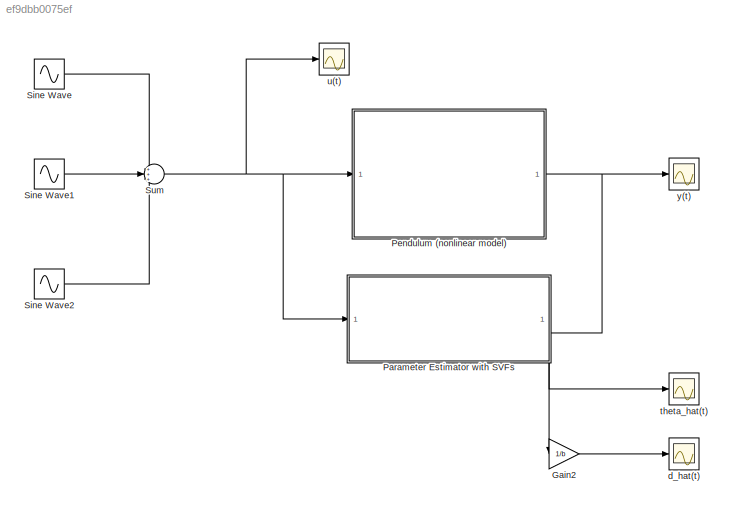
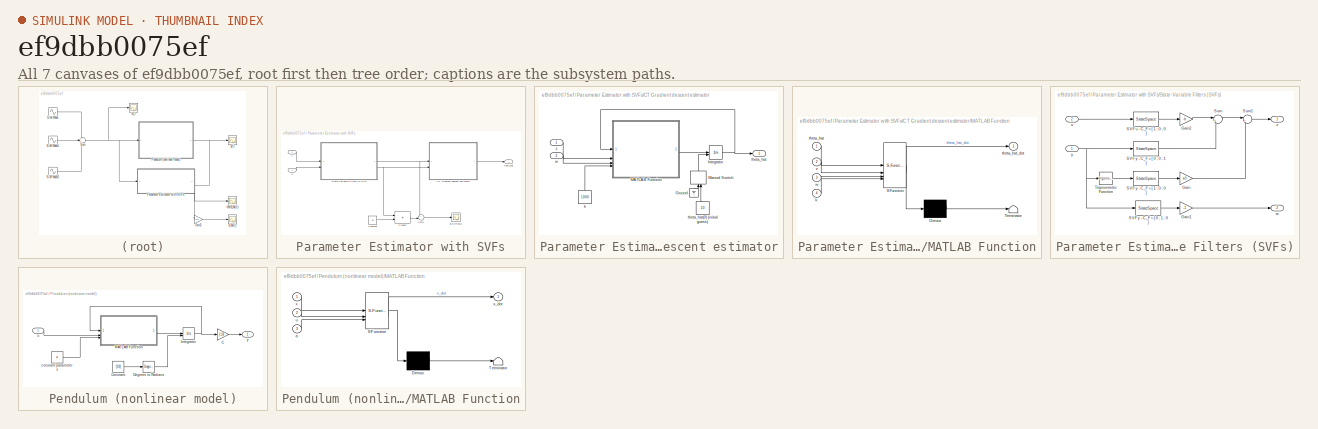
[diagram: thumbnail index - all 7 canvases of the model, root first then tree order]
MODEL slx_ef9dbb0075ef
KIND model
CONFIG AbsTol = auto
CONFIG EnableMultiTasking = off
CONFIG FixedStep = 0.01
CONFIG MaxStep = auto
CONFIG MinStep = auto
CONFIG RelTol = 1e-3
CONFIG SampleTimeConstraint = Unconstrained
CONFIG SolverName = ode3
CONFIG StartTime = 0.0
CONFIG StopTime = 500
BLOCK [Gain] Gain2
  Gain = 1/b
BLOCK [SubSystem] Parameter Estimator with SVFs
  NameLocation = top
  PortSchema = {"entries":[{"content":{"sides":[{"content":{"connectorIds":["In1"]},"type":"ConnectorPlacement.EquallySpacedRectSide","uuid":"701dba22-d81c-4620-a4f9-4eedebec699b"},{"content":{"connectorIds":["In2"],"side":"RIGHT"},"type":"ConnectorPlacement.EquallySpacedRectSide","uuid":"14a753f7-073c-4e1b-870d-b975b59fa292"},{"content":{"connectorIds":[],"side":"TOP"},"type":"ConnectorPlacement.EquallySpacedRe...<+389ch>
BLOCK [SubSystem] Parameter Estimator with SVFs/CT Gradient descent estimator
BLOCK [Ground] Parameter Estimator with SVFs/CT Gradient descent estimator/Ground
  NameLocation = right
BLOCK [Integrator] Parameter Estimator with SVFs/CT Gradient descent estimator/Integrator
  InitialCondition = 10
  InitialConditionSource = external
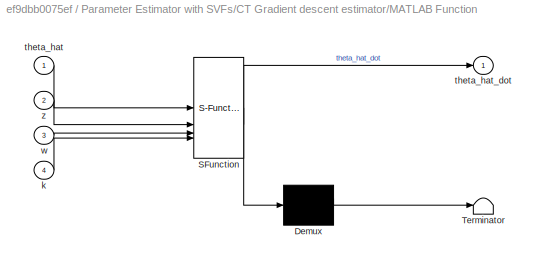
BLOCK [SubSystem] Parameter Estimator with SVFs/CT Gradient descent estimator/MATLAB Function
  ErrorFcn = Stateflow.Translate.translate
  PermitHierarchicalResolution = ExplicitOnly
  SFBlockType = MATLAB Function
  TreatAsAtomicUnit = on
BLOCK [Demux] Parameter Estimator with SVFs/CT Gradient descent estimator/MATLAB Function/ Demux 
  Outputs = 1
BLOCK [S-Function] Parameter Estimator with SVFs/CT Gradient descent estimator/MATLAB Function/ SFunction 
  EnableBusSupport = on
  FunctionName = sf_sfun
  PortCounts = [4 2]
  SFcnIsStateOwnerBlock = off
  SFunctionDeploymentMode = off
  Tag = Stateflow S-Function 1
BLOCK [Terminator] Parameter Estimator with SVFs/CT Gradient descent estimator/MATLAB Function/ Terminator 
BLOCK [Inport] Parameter Estimator with SVFs/CT Gradient descent estimator/MATLAB Function/k
  Port = 4
BLOCK [Inport] Parameter Estimator with SVFs/CT Gradient descent estimator/MATLAB Function/theta_hat
BLOCK [Outport] Parameter Estimator with SVFs/CT Gradient descent estimator/MATLAB Function/theta_hat_dot
BLOCK [Inport] Parameter Estimator with SVFs/CT Gradient descent estimator/MATLAB Function/w
  Port = 3
BLOCK [Inport] Parameter Estimator with SVFs/CT Gradient descent estimator/MATLAB Function/z
  Port = 2
BLOCK [ManualSwitch] Parameter Estimator with SVFs/CT Gradient descent estimator/Manual Switch
  NameLocation = right
BLOCK [Constant] Parameter Estimator with SVFs/CT Gradient descent estimator/k
  NameLocation = right
  Value = 1000
BLOCK [Outport] Parameter Estimator with SVFs/CT Gradient descent estimator/theta_hat
BLOCK [Constant] Parameter Estimator with SVFs/CT Gradient descent estimator/theta_hat(0) (initial guess)
  NameLocation = right
  Value = 10
BLOCK [Inport] Parameter Estimator with SVFs/CT Gradient descent estimator/w
  Port = 2
BLOCK [Inport] Parameter Estimator with SVFs/CT Gradient descent estimator/z
BLOCK [Constant] Parameter Estimator with SVFs/Constant
  Value = a1
  VectorParams1D = off
BLOCK [Product] Parameter Estimator with SVFs/Product
  Multiplication = Matrix(*)
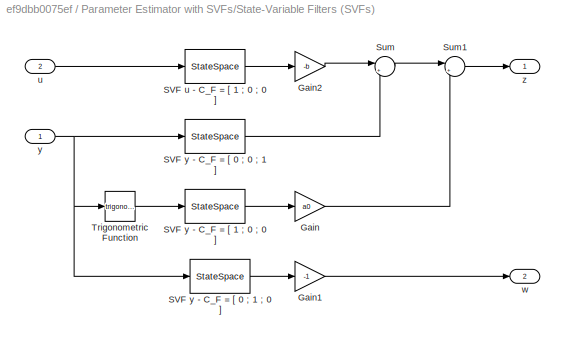
BLOCK [SubSystem] Parameter Estimator with SVFs/State-Variable Filters (SVFs)
BLOCK [Gain] Parameter Estimator with SVFs/State-Variable Filters (SVFs)/Gain
  Gain = a0
BLOCK [Gain] Parameter Estimator with SVFs/State-Variable Filters (SVFs)/Gain1
  Gain = -1
BLOCK [Gain] Parameter Estimator with SVFs/State-Variable Filters (SVFs)/Gain2
  Gain = -b
BLOCK [StateSpace] Parameter Estimator with SVFs/State-Variable Filters (SVFs)/SVF u - C_F = [ 1 ; 0 ; 0 ]
  A = A_F
  B = B_F
  C = C_F0
  D = 0
  InitialCondition = zeros(3,1)
BLOCK [StateSpace] Parameter Estimator with SVFs/State-Variable Filters (SVFs)/SVF y - C_F = [ 0 ; 0 ; 1 ]
  A = A_F
  B = B_F
  C = C_F2
  D = 0
  InitialCondition = ones(3,1)
BLOCK [StateSpace] Parameter Estimator with SVFs/State-Variable Filters (SVFs)/SVF y - C_F = [ 0 ; 1 ; 0 ]
  A = A_F
  B = B_F
  C = C_F1
  D = 0
  InitialCondition = zeros(3,1)
BLOCK [StateSpace] Parameter Estimator with SVFs/State-Variable Filters (SVFs)/SVF y - C_F = [ 1 ; 0 ; 0 ]
  A = A_F
  B = B_F
  C = C_F0
  D = 0
  InitialCondition = zeros(3,1)
BLOCK [Sum] Parameter Estimator with SVFs/State-Variable Filters (SVFs)/Sum
  Inputs = |++
BLOCK [Sum] Parameter Estimator with SVFs/State-Variable Filters (SVFs)/Sum1
  Inputs = |++
BLOCK [Trigonometry] Parameter Estimator with SVFs/State-Variable Filters (SVFs)/Trigonometric Function
BLOCK [Inport] Parameter Estimator with SVFs/State-Variable Filters (SVFs)/u
  Port = 2
BLOCK [Outport] Parameter Estimator with SVFs/State-Variable Filters (SVFs)/w
  Port = 2
BLOCK [Inport] Parameter Estimator with SVFs/State-Variable Filters (SVFs)/y
BLOCK [Outport] Parameter Estimator with SVFs/State-Variable Filters (SVFs)/z
BLOCK [Sum] Parameter Estimator with SVFs/Sum1
  Inputs = +-|
BLOCK [Scope] Parameter Estimator with SVFs/e=z-w'*theta
  Floating = off
  NumInputPorts = 1
  ScopeSpecificationString = Simulink.scopes.TimeScopeBlockCfg('CurrentConfiguration', extmgr.ConfigurationSet(extmgr.Configuration('Core','General UI',true),extmgr.Configuration('Core','Source UI',true),extmgr.Configuration('Sources','WiredSimulink',true,'DataLoggingVariableName','ScopeData1'),extmgr.Configuration('Visuals','Time Domain',true,'SerializedDisplays',{struct('MinYLimReal','0.9','MaxYLimReal','1.1','YLabelReal','...<+1358ch>
BLOCK [Outport] Parameter Estimator with SVFs/theta_hat
BLOCK [Inport] Parameter Estimator with SVFs/u
BLOCK [Inport] Parameter Estimator with SVFs/y
  Port = 2
BLOCK [SubSystem] Pendulum (nonlinear model)
  NameLocation = top
BLOCK [Gain] Pendulum (nonlinear model)/C
  Gain = [1,0]
  Multiplication = Matrix(K*u) (u vector)
BLOCK [Constant] Pendulum (nonlinear model)/Constant
  Value = [0;0]
  VectorParams1D = off
BLOCK [Reference] Pendulum (nonlinear model)/Degrees to Radians  REF=simulink_extras/Transformations/Degrees to
Radians
  SourceBlock = simulink_extras/Transformations/Degrees to\nRadians
  SourceType = DegreesToRadians
BLOCK [Integrator] Pendulum (nonlinear model)/Integrator
  InitialCondition = xstar
  InitialConditionSource = external
BLOCK [SubSystem] Pendulum (nonlinear model)/MATLAB Function
  ErrorFcn = Stateflow.Translate.translate
  PermitHierarchicalResolution = ExplicitOnly
  SFBlockType = MATLAB Function
  TreatAsAtomicUnit = on
BLOCK [Demux] Pendulum (nonlinear model)/MATLAB Function/ Demux 
  Outputs = 1
BLOCK [S-Function] Pendulum (nonlinear model)/MATLAB Function/ SFunction 
  EnableBusSupport = on
  FunctionName = sf_sfun
  PortCounts = [3 2]
  SFcnIsStateOwnerBlock = off
  SFunctionDeploymentMode = off
  Tag = Stateflow S-Function 2
BLOCK [Terminator] Pendulum (nonlinear model)/MATLAB Function/ Terminator 
BLOCK [Inport] Pendulum (nonlinear model)/MATLAB Function/a
  Port = 3
BLOCK [Inport] Pendulum (nonlinear model)/MATLAB Function/u
  Port = 2
BLOCK [Inport] Pendulum (nonlinear model)/MATLAB Function/x
BLOCK [Outport] Pendulum (nonlinear model)/MATLAB Function/x_dot
BLOCK [Constant] Pendulum (nonlinear model)/constant parameters
  Value = a
  VectorParams1D = off
BLOCK [Inport] Pendulum (nonlinear model)/u
BLOCK [Outport] Pendulum (nonlinear model)/y
BLOCK [Sin] Sine Wave
  Phase = pi*rand
  SampleTime = 0
BLOCK [Sin] Sine Wave1
  Frequency = 2
  Phase = pi/5
  SampleTime = 0
BLOCK [Sin] Sine Wave2
  Frequency = 0.5
  Phase = pi/3
  SampleTime = 0
BLOCK [Sum] Sum
  Inputs = +++
BLOCK [Scope] d_hat(t)
  Floating = off
  NumInputPorts = 1
  ScopeSpecificationString = Simulink.scopes.TimeScopeBlockCfg('CurrentConfiguration', extmgr.ConfigurationSet(extmgr.Configuration('Core','General UI',true),extmgr.Configuration('Core','Source UI',true),extmgr.Configuration('Sources','WiredSimulink',true,'DataLoggingVariableName','ScopeData1'),extmgr.Configuration('Visuals','Time Domain',true,'SerializedDisplays',{struct('MinYLimReal','-1702.20978','MaxYLimReal','234.36656',...<+1457ch>
BLOCK [Scope] theta_hat(t)
  Floating = off
  NumInputPorts = 1
  ScopeSpecificationString = Simulink.scopes.TimeScopeBlockCfg('CurrentConfiguration', extmgr.ConfigurationSet(extmgr.Configuration('Core','General UI',true),extmgr.Configuration('Core','Source UI',true),extmgr.Configuration('Sources','WiredSimulink',true,'DataLoggingVariableName','ScopeData1'),extmgr.Configuration('Visuals','Time Domain',true,'SerializedDisplays',{struct('MinYLimReal','-4.24401','MaxYLimReal','0.58985','YLab...<+1489ch>
BLOCK [Scope] u(t)
  Floating = off
  NumInputPorts = 1
  ScopeSpecificationString = Simulink.scopes.TimeScopeBlockCfg('CurrentConfiguration', extmgr.ConfigurationSet(extmgr.Configuration('Core','General UI',true),extmgr.Configuration('Core','Source UI',true),extmgr.Configuration('Sources','WiredSimulink',true,'DataLoggingVariableName','ScopeData1'),extmgr.Configuration('Visuals','Time Domain',true,'SerializedDisplays',{struct('MinYLimReal','-2.74767','MaxYLimReal','3.39984','YLab...<+1390ch>
BLOCK [Scope] y(t)
  Floating = off
  NumInputPorts = 1
  ScopeSpecificationString = Simulink.scopes.TimeScopeBlockCfg('CurrentConfiguration', extmgr.ConfigurationSet(extmgr.Configuration('Core','General UI',true),extmgr.Configuration('Core','Source UI',true),extmgr.Configuration('Sources','WiredSimulink',true),extmgr.Configuration('Visuals','Time Domain',true,'SerializedDisplays',{struct('MinYLimReal','-1.00000','MaxYLimReal','1.00000','YLabelReal','','MinYLimMag','0.00000','MaxY...<+1401ch>
LINE Gain2:1 -> d_hat(t):1
LINE Parameter Estimator with SVFs/CT Gradient descent estimator/Ground:1 -> Parameter Estimator with SVFs/CT Gradient descent estimator/Manual Switch:1
NET Parameter Estimator with SVFs/CT Gradient descent estimator/Integrator:1 -> Parameter Estimator with SVFs/CT Gradient descent estimator/MATLAB Function:1, Parameter Estimator with SVFs/CT Gradient descent estimator/theta_hat:1
LINE Parameter Estimator with SVFs/CT Gradient descent estimator/MATLAB Function:1 -> Parameter Estimator with SVFs/CT Gradient descent estimator/Integrator:1
LINE Parameter Estimator with SVFs/CT Gradient descent estimator/Manual Switch:1 -> Parameter Estimator with SVFs/CT Gradient descent estimator/Integrator:2
LINE Parameter Estimator with SVFs/CT Gradient descent estimator/k:1 -> Parameter Estimator with SVFs/CT Gradient descent estimator/MATLAB Function:4
LINE Parameter Estimator with SVFs/CT Gradient descent estimator/theta_hat(0) (initial guess):1 -> Parameter Estimator with SVFs/CT Gradient descent estimator/Manual Switch:2
LINE Parameter Estimator with SVFs/CT Gradient descent estimator/w:1 -> Parameter Estimator with SVFs/CT Gradient descent estimator/MATLAB Function:3
LINE Parameter Estimator with SVFs/CT Gradient descent estimator/z:1 -> Parameter Estimator with SVFs/CT Gradient descent estimator/MATLAB Function:2
LINE Parameter Estimator with SVFs/CT Gradient descent estimator:1 -> Parameter Estimator with SVFs/theta_hat:1
LINE Parameter Estimator with SVFs/Constant:1 -> Parameter Estimator with SVFs/Product:2
LINE Parameter Estimator with SVFs/Product:1 -> Parameter Estimator with SVFs/Sum1:2
LINE Parameter Estimator with SVFs/State-Variable Filters (SVFs)/Gain1:1 -> Parameter Estimator with SVFs/State-Variable Filters (SVFs)/w:1
LINE Parameter Estimator with SVFs/State-Variable Filters (SVFs)/Gain2:1 -> Parameter Estimator with SVFs/State-Variable Filters (SVFs)/Sum:1
LINE Parameter Estimator with SVFs/State-Variable Filters (SVFs)/Gain:1 -> Parameter Estimator with SVFs/State-Variable Filters (SVFs)/Sum1:2
LINE Parameter Estimator with SVFs/State-Variable Filters (SVFs)/SVF u - C_F = [ 1 ; 0 ; 0 ]:1 -> Parameter Estimator with SVFs/State-Variable Filters (SVFs)/Gain2:1
LINE Parameter Estimator with SVFs/State-Variable Filters (SVFs)/SVF y - C_F = [ 0 ; 0 ; 1 ]:1 -> Parameter Estimator with SVFs/State-Variable Filters (SVFs)/Sum:2
LINE Parameter Estimator with SVFs/State-Variable Filters (SVFs)/SVF y - C_F = [ 0 ; 1 ; 0 ]:1 -> Parameter Estimator with SVFs/State-Variable Filters (SVFs)/Gain1:1
LINE Parameter Estimator with SVFs/State-Variable Filters (SVFs)/SVF y - C_F = [ 1 ; 0 ; 0 ]:1 -> Parameter Estimator with SVFs/State-Variable Filters (SVFs)/Gain:1
LINE Parameter Estimator with SVFs/State-Variable Filters (SVFs)/Sum1:1 -> Parameter Estimator with SVFs/State-Variable Filters (SVFs)/z:1
LINE Parameter Estimator with SVFs/State-Variable Filters (SVFs)/Sum:1 -> Parameter Estimator with SVFs/State-Variable Filters (SVFs)/Sum1:1
LINE Parameter Estimator with SVFs/State-Variable Filters (SVFs)/Trigonometric Function:1 -> Parameter Estimator with SVFs/State-Variable Filters (SVFs)/SVF y - C_F = [ 1 ; 0 ; 0 ]:1
LINE Parameter Estimator with SVFs/State-Variable Filters (SVFs)/u:1 -> Parameter Estimator with SVFs/State-Variable Filters (SVFs)/SVF u - C_F = [ 1 ; 0 ; 0 ]:1
NET Parameter Estimator with SVFs/State-Variable Filters (SVFs)/y:1 -> Parameter Estimator with SVFs/State-Variable Filters (SVFs)/SVF y - C_F = [ 0 ; 0 ; 1 ]:1, Parameter Estimator with SVFs/State-Variable Filters (SVFs)/SVF y - C_F = [ 0 ; 1 ; 0 ]:1, Parameter Estimator with SVFs/State-Variable Filters (SVFs)/Trigonometric Function:1
NET Parameter Estimator with SVFs/State-Variable Filters (SVFs):1 -> Parameter Estimator with SVFs/CT Gradient descent estimator:1, Parameter Estimator with SVFs/Sum1:1
NET Parameter Estimator with SVFs/State-Variable Filters (SVFs):2 -> Parameter Estimator with SVFs/CT Gradient descent estimator:2, Parameter Estimator with SVFs/Product:1
LINE Parameter Estimator with SVFs/Sum1:1 -> Parameter Estimator with SVFs/e=z-w'*theta:1
LINE Parameter Estimator with SVFs/u:1 -> Parameter Estimator with SVFs/State-Variable Filters (SVFs):2
LINE Parameter Estimator with SVFs/y:1 -> Parameter Estimator with SVFs/State-Variable Filters (SVFs):1
NET Parameter Estimator with SVFs:1 -> Gain2:1, theta_hat(t):1
LINE Pendulum (nonlinear model)/C:1 -> Pendulum (nonlinear model)/y:1
LINE Pendulum (nonlinear model)/Constant:1 -> Pendulum (nonlinear model)/Degrees to Radians:1
LINE Pendulum (nonlinear model)/Degrees to Radians:1 -> Pendulum (nonlinear model)/Integrator:2
NET Pendulum (nonlinear model)/Integrator:1 -> Pendulum (nonlinear model)/C:1, Pendulum (nonlinear model)/MATLAB Function:1
LINE Pendulum (nonlinear model)/MATLAB Function:1 -> Pendulum (nonlinear model)/Integrator:1
LINE Pendulum (nonlinear model)/constant parameters:1 -> Pendulum (nonlinear model)/MATLAB Function:3
LINE Pendulum (nonlinear model)/u:1 -> Pendulum (nonlinear model)/MATLAB Function:2
NET Pendulum (nonlinear model):1 -> Parameter Estimator with SVFs:2, y(t):1
LINE Sine Wave1:1 -> Sum:2
LINE Sine Wave2:1 -> Sum:3
LINE Sine Wave:1 -> Sum:1
NET Sum:1 -> Parameter Estimator with SVFs:1, Pendulum (nonlinear model):1, u(t):1
note: NET lines group one-source signal fan-out (src -> all destinations, sorted); 1:1 wires keep LINE
CHART Parameter Estimator with SVFs/CT Gradient descent estimator/MATLAB Function states=1 transitions=1
  STATE_LABEL 'eML_blk_kernel()'
  STATE_LABEL 'SCRIPT:\nfunction theta_hat_dot = fcn(theta_hat,z,w,k)\n\n% compute Jacobian of cost function J with respect to theta_hat\ndJdtheta_hat = 2*w*(w*theta_hat - z);\n\n% basic gradient descent algorithm\ntheta_hat_dot = -k*dJdtheta_hat;\n'
CHART Pendulum (nonlinear model)/MATLAB Function states=1 transitions=1
  STATE_LABEL 'eML_blk_kernel()'
  STATE_LABEL 'SCRIPT:\nfunction x_dot = f(x,u,a)\n\n% a is the vector of constant parameters\nm = a(1);\ng = a(2);\nl = a(3);\nd = a(4);\n\nx_dot = [ x(2) ; 1/(m*l^2)*(-m*g*l*sin(x(1))-d*x(2)+u) ];\n'
CHART  states=0 transitions=0
CHART  states=0 transitions=0
